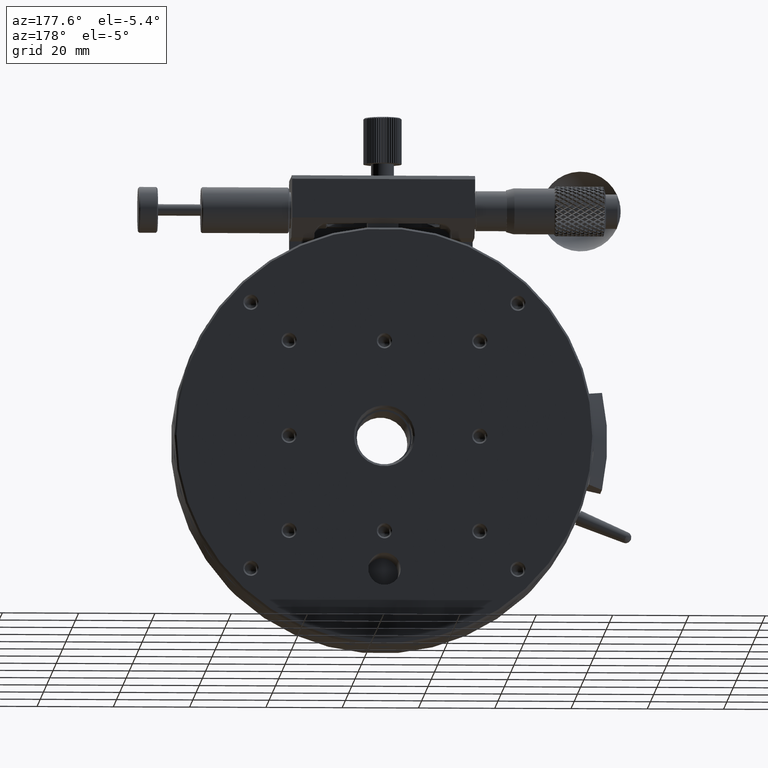
[diagram: clean part render]
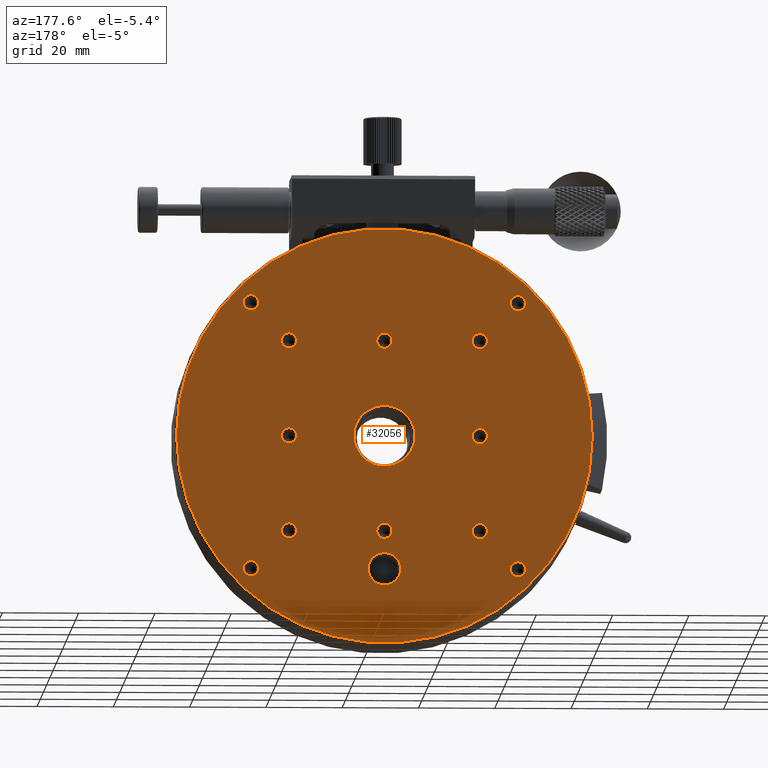
[diagram: same view with one face highlighted and labeled with its STEP entity id]
A machine part, auxiliary view. The second image highlights one B-rep face of the part: STEP entity #32056.
In plain terms, the highlighted planar face has unit normal (0, -1, 0).
Its self-contained STEP definition (entity closure, byte-faithful):
#211 = DIRECTION ( 'NONE',  ( -1.000000000000000000, 0.000000000000000000, 0.000000000000000000 ) ) ;
#612 = FACE_BOUND ( 'NONE', #80843, .T. ) ;
#711 = EDGE_CURVE ( 'NONE', #10108, #10108, #23235, .T. ) ;
#1054 = FACE_BOUND ( 'NONE', #19325, .T. ) ;
#3125 = CIRCLE ( 'NONE', #88361, 1.999999999977714049 ) ;
#3399 = DIRECTION ( 'NONE',  ( 0.000000000000000000, 1.000000000000000000, 0.000000000000000000 ) ) ;
#3519 = ORIENTED_EDGE ( 'NONE', *, *, #78176, .F. ) ;
#3777 = DIRECTION ( 'NONE',  ( 0.000000000000000000, 1.734723476017827861E-15, -1.000000000000000000 ) ) ;
#4682 = ORIENTED_EDGE ( 'NONE', *, *, #6296, .F. ) ;
#5227 = ORIENTED_EDGE ( 'NONE', *, *, #69628, .F. ) ;
#5778 = ORIENTED_EDGE ( 'NONE', *, *, #78288, .F. ) ;
#5838 = CIRCLE ( 'NONE', #10223, 1.999999999984541921 ) ;
#6296 = EDGE_CURVE ( 'NONE', #63459, #63459, #5838, .T. ) ;
#6781 = DIRECTION ( 'NONE',  ( 1.000000000000000000, 0.000000000000000000, 0.000000000000000000 ) ) ;
#6845 = CARTESIAN_POINT ( 'NONE',  ( 88.00000000001546141, 25.00000000000090949, -19.99999999999999645 ) ) ;
#7292 = CARTESIAN_POINT ( 'NONE',  ( 28.00000000007003109, 24.99999999994406608, -55.00000000000000000 ) ) ;
#7473 = PLANE ( 'NONE',  #8256 ) ;
#8256 = AXIS2_PLACEMENT_3D ( 'NONE', #85696, #35537, #50737 ) ;
#8358 = EDGE_CURVE ( 'NONE', #42732, #42732, #8825, .T. ) ;
#8790 = DIRECTION ( 'NONE',  ( 0.000000000000000000, 1.000000000000000000, 0.000000000000000000 ) ) ;
#8825 = CIRCLE ( 'NONE', #77869, 1.999999999929967576 ) ;
#9197 = EDGE_CURVE ( 'NONE', #77685, #77685, #66202, .T. ) ;
#10108 = VERTEX_POINT ( 'NONE', #66263 ) ;
#10147 = AXIS2_PLACEMENT_3D ( 'NONE', #86061, #38145, #86970 ) ;
#10223 = AXIS2_PLACEMENT_3D ( 'NONE', #13725, #28404, #35775 ) ;
#10238 = DIRECTION ( 'NONE',  ( 0.000000000000000000, 1.000000000000000000, 0.000000000000000000 ) ) ;
#10652 = DIRECTION ( 'NONE',  ( 0.000000000000000000, 1.000000000000000000, 8.673617380089146210E-16 ) ) ;
#12120 = CARTESIAN_POINT ( 'NONE',  ( 59.25000000000000000, 25.00000000000000000, -90.00000000000000000 ) ) ;
#13614 = EDGE_LOOP ( 'NONE', ( #79824 ) ) ;
#13725 = CARTESIAN_POINT ( 'NONE',  ( 90.00000000000000000, 25.00000000000090949, -90.00000000000000000 ) ) ;
#14551 = ORIENTED_EDGE ( 'NONE', *, *, #20474, .F. ) ;
#14851 = FACE_BOUND ( 'NONE', #46246, .T. ) ;
#15301 = FACE_BOUND ( 'NONE', #13614, .T. ) ;
#16084 = ORIENTED_EDGE ( 'NONE', *, *, #51568, .F. ) ;
#17011 = AXIS2_PLACEMENT_3D ( 'NONE', #48233, #76732, #6781 ) ;
#17501 = DIRECTION ( 'NONE',  ( -1.000000000000000000, 0.000000000000000000, 0.000000000000000000 ) ) ;
#17521 = DIRECTION ( 'NONE',  ( -1.000000000000000000, 0.000000000000000000, 0.000000000000000000 ) ) ;
#18226 = EDGE_CURVE ( 'NONE', #69295, #69295, #82636, .T. ) ;
#18690 = EDGE_CURVE ( 'NONE', #48588, #48588, #66500, .T. ) ;
#19325 = EDGE_LOOP ( 'NONE', ( #5227 ) ) ;
#20054 = CARTESIAN_POINT ( 'NONE',  ( 55.00000000000000000, 25.00000000000091305, -31.99999999995270628 ) ) ;
#20474 = EDGE_CURVE ( 'NONE', #83085, #83085, #71048, .T. ) ;
#21204 = DIRECTION ( 'NONE',  ( 0.000000000000000000, 1.000000000000000000, 0.000000000000000000 ) ) ;
#21274 = EDGE_LOOP ( 'NONE', ( #63829 ) ) ;
#21845 = VERTEX_POINT ( 'NONE', #36090 ) ;
#22194 = FACE_BOUND ( 'NONE', #86545, .T. ) ;
#23235 = CIRCLE ( 'NONE', #76172, 1.999999999977714049 ) ;
#24409 = CARTESIAN_POINT ( 'NONE',  ( 19.99999999999999645, 25.00000000000090949, -19.99999999999999645 ) ) ;
#26007 = EDGE_CURVE ( 'NONE', #35193, #35193, #84427, .T. ) ;
#27135 = CIRCLE ( 'NONE', #36132, 1.999999999952706276 ) ;
#27737 = DIRECTION ( 'NONE',  ( 0.000000000000000000, 1.000000000000000000, 8.673617380089139307E-16 ) ) ;
#27829 = CARTESIAN_POINT ( 'NONE',  ( 78.00000000002455636, 25.00000000000090949, -55.00000000000000000 ) ) ;
#28404 = DIRECTION ( 'NONE',  ( 0.000000000000000000, 1.000000000000000000, 0.000000000000000000 ) ) ;
#29521 = FACE_BOUND ( 'NONE', #46941, .T. ) ;
#29752 = EDGE_LOOP ( 'NONE', ( #33064 ) ) ;
#30971 = CIRCLE ( 'NONE', #69262, 1.999999999975452081 ) ;
#31209 = EDGE_CURVE ( 'NONE', #21845, #21845, #52296, .T. ) ;
#31215 = DIRECTION ( 'NONE',  ( 0.000000000000000000, 1.000000000000000000, 0.000000000000000000 ) ) ;
#31252 = AXIS2_PLACEMENT_3D ( 'NONE', #73708, #10652, #3777 ) ;
#32056 = ADVANCED_FACE ( 'NONE', ( #612, #1054, #85238, #76959, #77409, #77871, #78748, #14851, #43809, #42454, #22194, #70552, #50283, #15301, #29521 ), #7473, .F. ) ;
#32806 = DIRECTION ( 'NONE',  ( -0.000000000000000000, 1.000000000000000000, -0.000000000000000000 ) ) ;
#32829 = CARTESIAN_POINT ( 'NONE',  ( 78.00000000002455636, 25.00000000000090949, -30.00000000000000000 ) ) ;
#32976 = ORIENTED_EDGE ( 'NONE', *, *, #26007, .F. ) ;
#33064 = ORIENTED_EDGE ( 'NONE', *, *, #18226, .F. ) ;
#33659 = EDGE_LOOP ( 'NONE', ( #65057 ) ) ;
#34179 = VERTEX_POINT ( 'NONE', #62272 ) ;
#34322 = ORIENTED_EDGE ( 'NONE', *, *, #711, .F. ) ;
#34408 = AXIS2_PLACEMENT_3D ( 'NONE', #58565, #10238, #38290 ) ;
#35193 = VERTEX_POINT ( 'NONE', #89101 ) ;
#35537 = DIRECTION ( 'NONE',  ( 0.000000000000000000, -1.000000000000000000, 0.000000000000000000 ) ) ;
#35775 = DIRECTION ( 'NONE',  ( -1.000000000000000000, 0.000000000000000000, 0.000000000000000000 ) ) ;
#35915 = EDGE_LOOP ( 'NONE', ( #34322 ) ) ;
#36090 = CARTESIAN_POINT ( 'NONE',  ( 109.5000000000000000, 25.00000000000000000, -55.00000000000000000 ) ) ;
#36132 = AXIS2_PLACEMENT_3D ( 'NONE', #62283, #27737, #90818 ) ;
#36430 = VERTEX_POINT ( 'NONE', #71446 ) ;
#37177 = EDGE_LOOP ( 'NONE', ( #4682 ) ) ;
#37611 = EDGE_LOOP ( 'NONE', ( #78517 ) ) ;
#38145 = DIRECTION ( 'NONE',  ( 0.000000000000000000, 1.000000000000000000, 0.000000000000000000 ) ) ;
#38290 = DIRECTION ( 'NONE',  ( -1.000000000000000000, 0.000000000000000000, 0.000000000000000000 ) ) ;
#38309 = CARTESIAN_POINT ( 'NONE',  ( 19.99999999999999645, 25.00000000000090949, -90.00000000000000000 ) ) ;
#40631 = VERTEX_POINT ( 'NONE', #12120 ) ;
#42230 = EDGE_LOOP ( 'NONE', ( #3519 ) ) ;
#42454 = FACE_BOUND ( 'NONE', #37177, .T. ) ;
#42732 = VERTEX_POINT ( 'NONE', #7292 ) ;
#43809 = FACE_BOUND ( 'NONE', #35915, .T. ) ;
#46101 = DIRECTION ( 'NONE',  ( -1.000000000000000000, 0.000000000000000000, 0.000000000000000000 ) ) ;
#46246 = EDGE_LOOP ( 'NONE', ( #5778 ) ) ;
#46941 = EDGE_LOOP ( 'NONE', ( #32976 ) ) ;
#48233 = CARTESIAN_POINT ( 'NONE',  ( 55.00000000000000000, 25.00000000000000000, -55.00000000000000000 ) ) ;
#48588 = VERTEX_POINT ( 'NONE', #27829 ) ;
#49290 = DIRECTION ( 'NONE',  ( -1.000000000000000000, 0.000000000000000000, 0.000000000000000000 ) ) ;
#50129 = AXIS2_PLACEMENT_3D ( 'NONE', #67793, #32806, #60883 ) ;
#50283 = FACE_BOUND ( 'NONE', #75708, .T. ) ;
#50737 = DIRECTION ( 'NONE',  ( 1.000000000000000000, 0.000000000000000000, 0.000000000000000000 ) ) ;
#51511 = CARTESIAN_POINT ( 'NONE',  ( 30.00000000000000000, 24.99999999994406608, -80.00000000000000000 ) ) ;
#51568 = EDGE_CURVE ( 'NONE', #66912, #66912, #60351, .T. ) ;
#51578 = CARTESIAN_POINT ( 'NONE',  ( 30.00000000000000000, 24.99999999994406608, -30.00000000000000000 ) ) ;
#52296 = CIRCLE ( 'NONE', #17011, 54.50000000000000000 ) ;
#54002 = CARTESIAN_POINT ( 'NONE',  ( 18.00000000002228262, 25.00000000000090949, -19.99999999999999645 ) ) ;
#56541 = CARTESIAN_POINT ( 'NONE',  ( 88.00000000001546141, 25.00000000000090949, -90.00000000000000000 ) ) ;
#57206 = CARTESIAN_POINT ( 'NONE',  ( 30.00000000000000000, 24.99999999994406608, -55.00000000000000000 ) ) ;
#58565 = CARTESIAN_POINT ( 'NONE',  ( 55.00000000000000000, 25.00000000000000000, -55.00000000000000000 ) ) ;
#59506 = DIRECTION ( 'NONE',  ( -1.000000000000000000, 0.000000000000000000, 0.000000000000000000 ) ) ;
#60351 = CIRCLE ( 'NONE', #69171, 1.999999999929967576 ) ;
#60649 = AXIS2_PLACEMENT_3D ( 'NONE', #66337, #87497, #46101 ) ;
#60883 = DIRECTION ( 'NONE',  ( 1.000000000000000000, 0.000000000000000000, 0.000000000000000000 ) ) ;
#61534 = ORIENTED_EDGE ( 'NONE', *, *, #78696, .F. ) ;
#62272 = CARTESIAN_POINT ( 'NONE',  ( 78.00000000002455636, 25.00000000000090949, -80.00000000000000000 ) ) ;
#62283 = CARTESIAN_POINT ( 'NONE',  ( 55.00000000000000000, 25.00000000000090949, -80.00000000000000000 ) ) ;
#63459 = VERTEX_POINT ( 'NONE', #56541 ) ;
#63829 = ORIENTED_EDGE ( 'NONE', *, *, #18690, .F. ) ;
#65057 = ORIENTED_EDGE ( 'NONE', *, *, #31209, .F. ) ;
#66202 = CIRCLE ( 'NONE', #10147, 1.999999999984541921 ) ;
#66263 = CARTESIAN_POINT ( 'NONE',  ( 18.00000000002228262, 25.00000000000090949, -90.00000000000000000 ) ) ;
#66337 = CARTESIAN_POINT ( 'NONE',  ( 80.00000000000000000, 25.00000000000090949, -55.00000000000000000 ) ) ;
#66500 = CIRCLE ( 'NONE', #60649, 1.999999999975452081 ) ;
#66912 = VERTEX_POINT ( 'NONE', #67361 ) ;
#67361 = CARTESIAN_POINT ( 'NONE',  ( 28.00000000007003109, 24.99999999994406608, -30.00000000000000000 ) ) ;
#67793 = CARTESIAN_POINT ( 'NONE',  ( 55.00000000000000000, 25.00000000000000000, -90.00000000000000000 ) ) ;
#69171 = AXIS2_PLACEMENT_3D ( 'NONE', #51578, #74101, #17501 ) ;
#69262 = AXIS2_PLACEMENT_3D ( 'NONE', #86112, #8790, #87017 ) ;
#69295 = VERTEX_POINT ( 'NONE', #76618 ) ;
#69628 = EDGE_CURVE ( 'NONE', #76518, #76518, #71984, .T. ) ;
#70552 = FACE_OUTER_BOUND ( 'NONE', #33659, .T. ) ;
#71048 = CIRCLE ( 'NONE', #31252, 1.999999999952706276 ) ;
#71446 = CARTESIAN_POINT ( 'NONE',  ( 55.00000000000000000, 25.00000000000090949, -81.99999999995270628 ) ) ;
#71984 = CIRCLE ( 'NONE', #76362, 1.999999999975452081 ) ;
#73123 = DIRECTION ( 'NONE',  ( -1.000000000000000000, 0.000000000000000000, 0.000000000000000000 ) ) ;
#73708 = CARTESIAN_POINT ( 'NONE',  ( 55.00000000000000000, 25.00000000000090949, -30.00000000000000000 ) ) ;
#74101 = DIRECTION ( 'NONE',  ( 0.000000000000000000, 1.000000000000000000, 0.000000000000000000 ) ) ;
#75580 = ORIENTED_EDGE ( 'NONE', *, *, #9197, .F. ) ;
#75708 = EDGE_LOOP ( 'NONE', ( #61534 ) ) ;
#76172 = AXIS2_PLACEMENT_3D ( 'NONE', #38309, #3399, #59506 ) ;
#76362 = AXIS2_PLACEMENT_3D ( 'NONE', #77773, #21204, #49290 ) ;
#76518 = VERTEX_POINT ( 'NONE', #32829 ) ;
#76618 = CARTESIAN_POINT ( 'NONE',  ( 28.00000000007003109, 24.99999999994406608, -80.00000000000000000 ) ) ;
#76732 = DIRECTION ( 'NONE',  ( 0.000000000000000000, -1.000000000000000000, 0.000000000000000000 ) ) ;
#76959 = FACE_BOUND ( 'NONE', #37611, .T. ) ;
#77409 = FACE_BOUND ( 'NONE', #29752, .T. ) ;
#77685 = VERTEX_POINT ( 'NONE', #6845 ) ;
#77773 = CARTESIAN_POINT ( 'NONE',  ( 80.00000000000000000, 25.00000000000090949, -30.00000000000000000 ) ) ;
#77869 = AXIS2_PLACEMENT_3D ( 'NONE', #57206, #85292, #211 ) ;
#77871 = FACE_BOUND ( 'NONE', #42230, .T. ) ;
#78176 = EDGE_CURVE ( 'NONE', #34179, #34179, #30971, .T. ) ;
#78288 = EDGE_CURVE ( 'NONE', #90353, #90353, #3125, .T. ) ;
#78517 = ORIENTED_EDGE ( 'NONE', *, *, #8358, .F. ) ;
#78696 = EDGE_CURVE ( 'NONE', #40631, #40631, #85393, .T. ) ;
#78748 = FACE_BOUND ( 'NONE', #21274, .T. ) ;
#79824 = ORIENTED_EDGE ( 'NONE', *, *, #86046, .F. ) ;
#80536 = DIRECTION ( 'NONE',  ( 0.000000000000000000, 1.000000000000000000, 0.000000000000000000 ) ) ;
#80843 = EDGE_LOOP ( 'NONE', ( #16084 ) ) ;
#82636 = CIRCLE ( 'NONE', #90019, 1.999999999929967576 ) ;
#83085 = VERTEX_POINT ( 'NONE', #20054 ) ;
#84427 = CIRCLE ( 'NONE', #34408, 8.000000000000000000 ) ;
#85238 = FACE_BOUND ( 'NONE', #87300, .T. ) ;
#85292 = DIRECTION ( 'NONE',  ( 0.000000000000000000, 1.000000000000000000, 0.000000000000000000 ) ) ;
#85393 = CIRCLE ( 'NONE', #50129, 4.249999999999996447 ) ;
#85696 = CARTESIAN_POINT ( 'NONE',  ( 55.00000000000000000, 25.00000000000000000, -109.5000000000000000 ) ) ;
#86046 = EDGE_CURVE ( 'NONE', #36430, #36430, #27135, .T. ) ;
#86061 = CARTESIAN_POINT ( 'NONE',  ( 90.00000000000000000, 25.00000000000090949, -19.99999999999999645 ) ) ;
#86112 = CARTESIAN_POINT ( 'NONE',  ( 80.00000000000000000, 25.00000000000090949, -80.00000000000000000 ) ) ;
#86545 = EDGE_LOOP ( 'NONE', ( #75580 ) ) ;
#86970 = DIRECTION ( 'NONE',  ( -1.000000000000000000, 0.000000000000000000, 0.000000000000000000 ) ) ;
#87017 = DIRECTION ( 'NONE',  ( -1.000000000000000000, 0.000000000000000000, 0.000000000000000000 ) ) ;
#87300 = EDGE_LOOP ( 'NONE', ( #14551 ) ) ;
#87497 = DIRECTION ( 'NONE',  ( 0.000000000000000000, 1.000000000000000000, 0.000000000000000000 ) ) ;
#88361 = AXIS2_PLACEMENT_3D ( 'NONE', #24409, #80536, #17521 ) ;
#89101 = CARTESIAN_POINT ( 'NONE',  ( 47.00000000000000000, 25.00000000000000000, -55.00000000000000000 ) ) ;
#90019 = AXIS2_PLACEMENT_3D ( 'NONE', #51511, #31215, #73123 ) ;
#90353 = VERTEX_POINT ( 'NONE', #54002 ) ;
#90818 = DIRECTION ( 'NONE',  ( 0.000000000000000000, 0.000000000000000000, -1.000000000000000000 ) ) ;